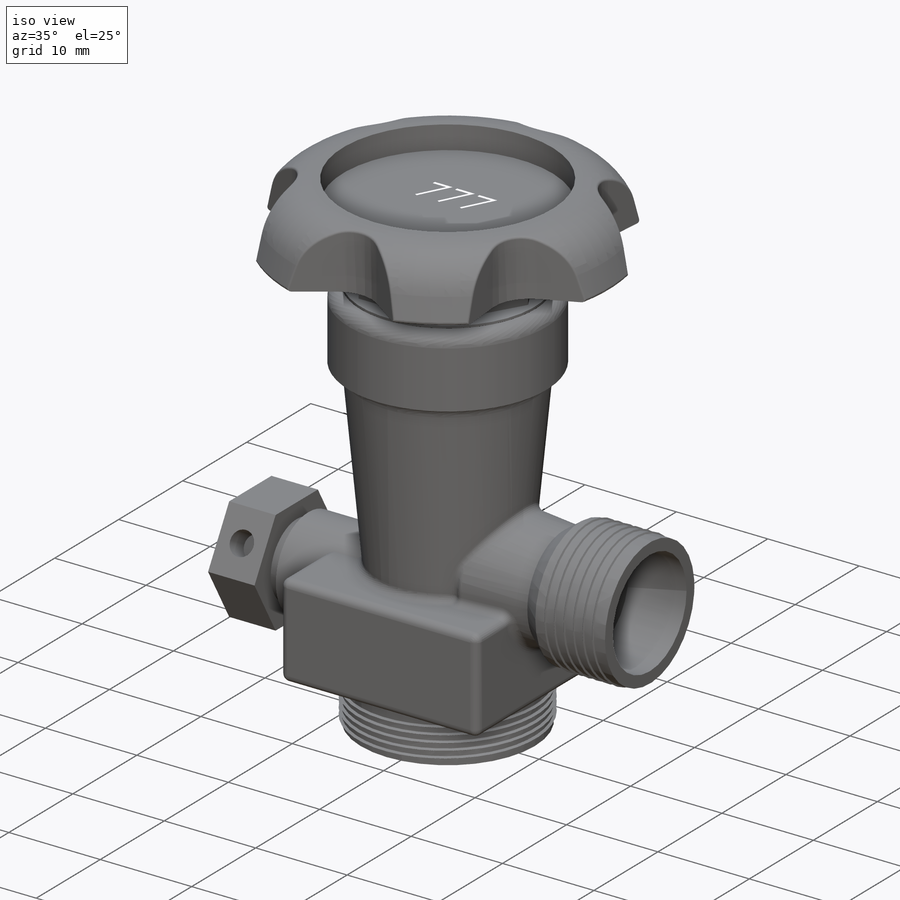
[diagram: iso view]
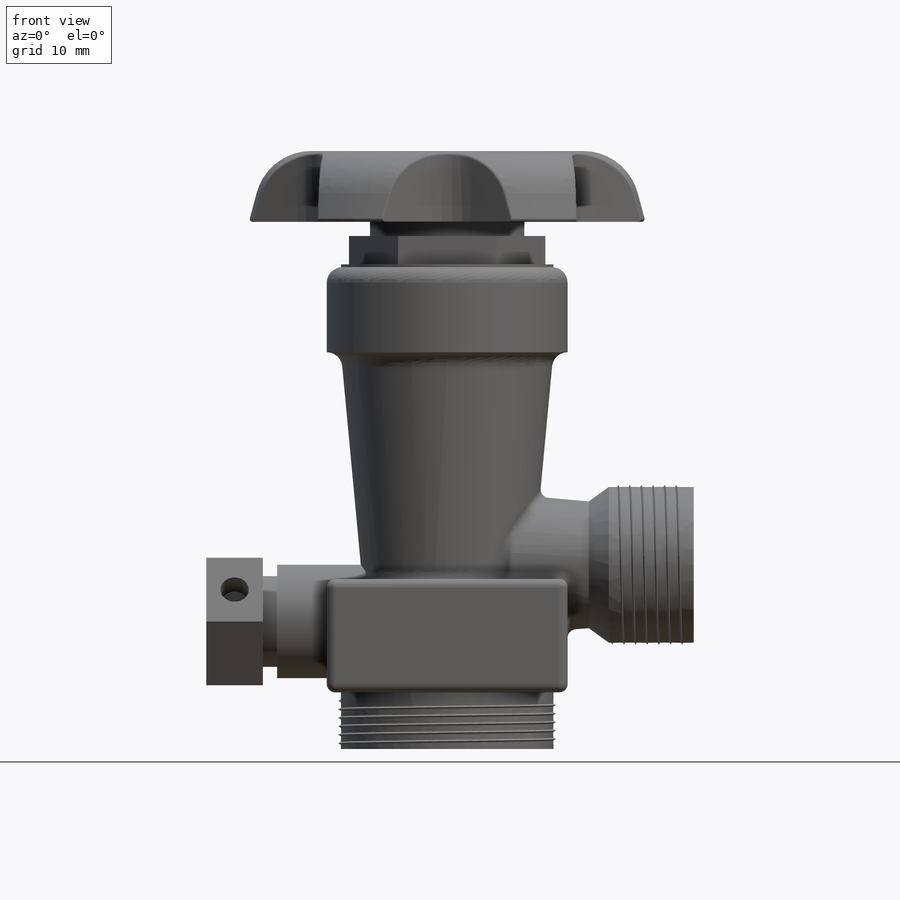
[diagram: front view]
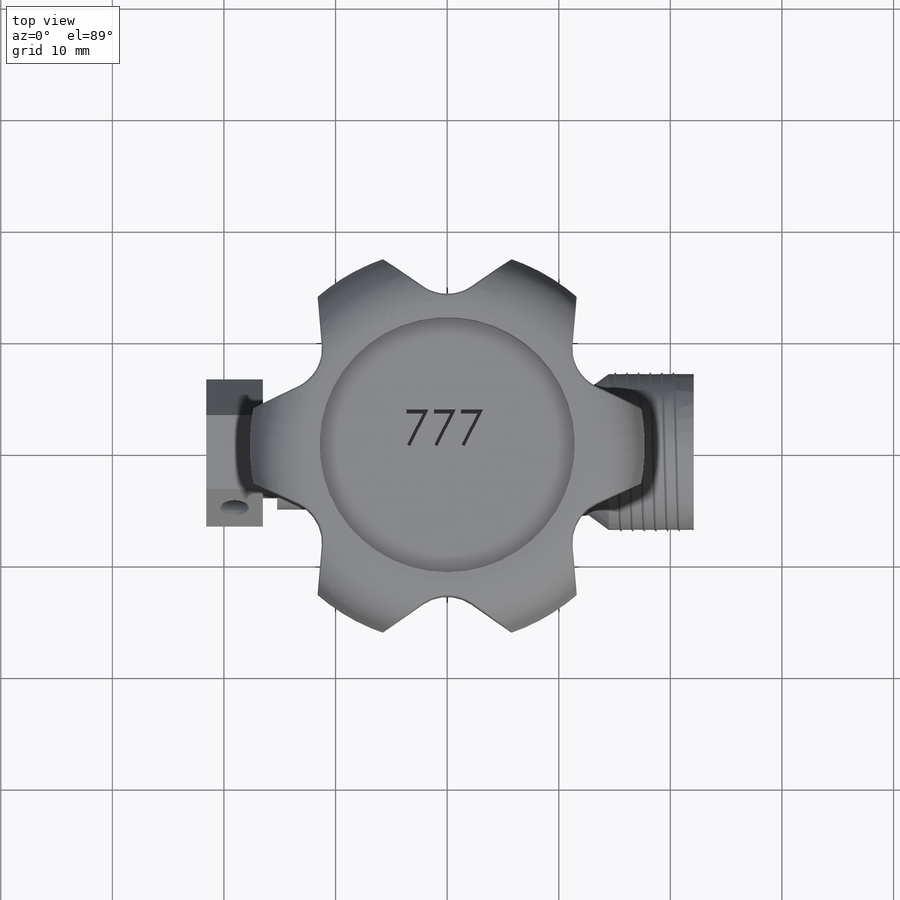
[diagram: top view]
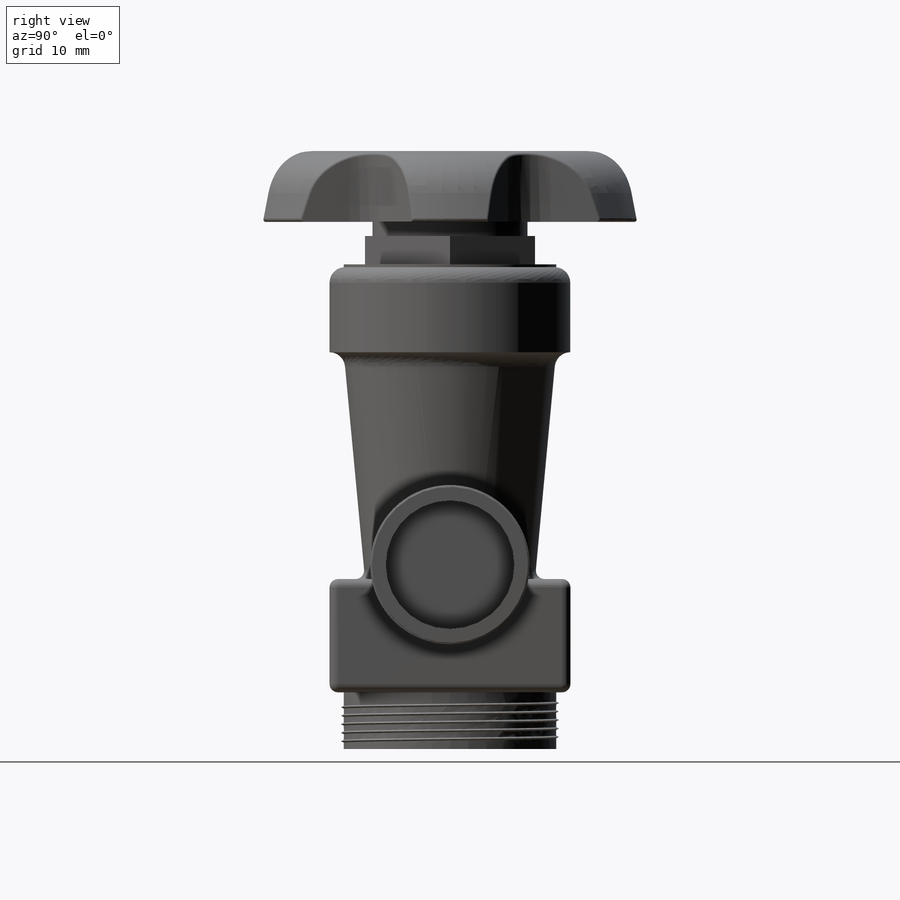
[diagram: right view]
SOLIDWORKS PART (.sldprt)
format: sldprt  version: not decoded by parser v0  size: 1,224,192 bytes
history: native  units: mm
features: sketch x26, extrude x12, fillet x8, plane x7, cut_extrude x6, shell x2, helix x2, sweep x2, material x1, pattern_circular x1 (+13 scaffold rows collapsed)
feature tree (80):
  scaffold x13  (default folders/planes/origin — collapsed)
  material  "Material <not specified>"
  sketch  "Sketch1"  dims[D1=19.05mm]
  extrude  "Boss-Extrude1"  Depth=7.62mm
  sketch  "Sketch2"  dims[c1.D1=~20.296665mm c1.D2=~21.857947mm c2.D1=21.59mm]
  extrude  "Boss-Extrude2"  Depth=7.62mm
  sketch  "Sketch3"  dims[D1=15.24mm]
  plane  "Plane1"  Offset=20.32mm
  plane  "Plane2"  Offset=15.24mm
  sketch  "Sketch4"  dims[D1=19.05mm]
  sketch  "Sketch5"  dims[D1=21.59mm]
  extrude  "Boss-Extrude3"  Depth=7.62mm
  shell  "Shell1"  Thickness=1.27mm
  sketch  "Sketch6"  dims[D1=18.288mm]
  extrude  "Boss-Extrude4"  Depth=0.254mm
  sketch  "Sketch7"  dims[D1=15.24mm]
  extrude  "Boss-Extrude5"  Depth=2.54mm
  sketch  "Sketch8"  dims[D1=~12.67506mm]
  cut_extrude  "Cut-Extrude1"  Depth=6.35mm
  sketch  "Sketch9"  dims[c1.D1=~13.884066mm c1.D2=~22.69142mm c2.D1=0.0mm]
  extrude  "Boss-Extrude6"  Depth=1.27mm
  sketch  "Sketch14"  dims[D1=35.56mm]
  extrude  "Boss-Extrude7"  Depth=6.35mm
  fillet  "Fillet1"  Radius=5.08mm
  sketch  "Sketch15"  dims[c1.D1=~7.398939mm c2.D1=125.0deg c2.D2=12.7mm c2.D3=12.7mm]
  cut_extrude  "Cut-Extrude3"  Depth=12.7mm
  pattern_circular  "CirPattern1"  Count=6 Angle=360deg
  sketch  "Sketch16"  dims[D1=12.7mm D2=16.51mm]
  extrude  "Boss-Extrude8"  Depth=7.62mm
  plane  "Plane4"  Offset=1.778mm
  sketch  "Sketch17"  dims[D1=13.97mm]
  sketch  "Sketch18"  dims[D1=~1.89231mm]
  shell  "Loft2"  [1 undecoded]
  extrude  "Boss-Extrude9"  [1 undecoded]
  sketch  "Sketch17<3>"  dims[D1=7.62mm]
  sketch  "Sketch19"  dims[D1=~11.520338mm]
  cut_extrude  "Cut-Extrude4"  Depth=6.35mm
  plane  "Plane6"  Offset=0.762mm
  sketch  "Sketch21"
  helix  "Helix/Spiral1"  Pitch=6.2484mm
  plane  "Plane5"
  sketch  "Sketch23"  dims[D1=0.254mm D2=0.254mm D3=7.0104mm D4=~0.421564mm]
  sweep  "Sweep1"
  sketch  "Sketch24"  dims[D1=10.16mm D2=11.43mm]
  extrude  "Boss-Extrude10"  Depth=10.16mm
  sketch  "Sketch25"  dims[D1=8.128mm]
  extrude  "Boss-Extrude11"  Depth=1.27mm
  sketch  "Sketch26"  dims[D1=11.43mm]
  extrude  "Boss-Extrude12"  Depth=5.08mm
  sketch  "Sketch27"  dims[D1=2.54mm D2=~3.20571mm]
  cut_extrude  "Cut-Extrude5"  Depth=2.54mm
  sketch  "Sketch28"  dims[D1=22.86mm]
  cut_extrude  "Cut-Extrude6"  Depth=2.54mm
  plane  "Plane7"  Offset=0.508mm
  sketch  "Sketch29"
  helix  "Helix/Spiral2"  Pitch=3.81mm
  plane  "Plane8"
  sketch  "Sketch30"  dims[c1.D1=0.254mm c1.D2=0.254mm c1.D3=0.508mm c1.D4=0.508mm c2.D4=~63.434949deg c2.D2=~4.175249mm c3.D4=~4.429249mm]
  sweep  "Sweep2"
  fillet  "Fillet2"  Radius=1.397mm
  fillet  "Fillet4"  Radius=0.762mm
  fillet  "Fillet5"  Radius=0.762mm
  fillet  "Fillet6"  Radius=0.762mm
  fillet  "Fillet7"  Radius=0.762mm
  fillet  "Fillet9"  Radius=3.81mm
  fillet  "Fillet8"  Radius=0.254mm
  sketch  "Sketch31"  dims[D1=7.62mm D2=6.35mm]
  cut_extrude  "Cut-Extrude8"  Depth=0.508mm
decode coverage: 53 of 59 modeling features carry decoded parameters
note: ~ marks probable driven/reference dimensions
note: 2 parameter values undecoded
note: suppression state not decoded; provenance and decode notes live in map.json
